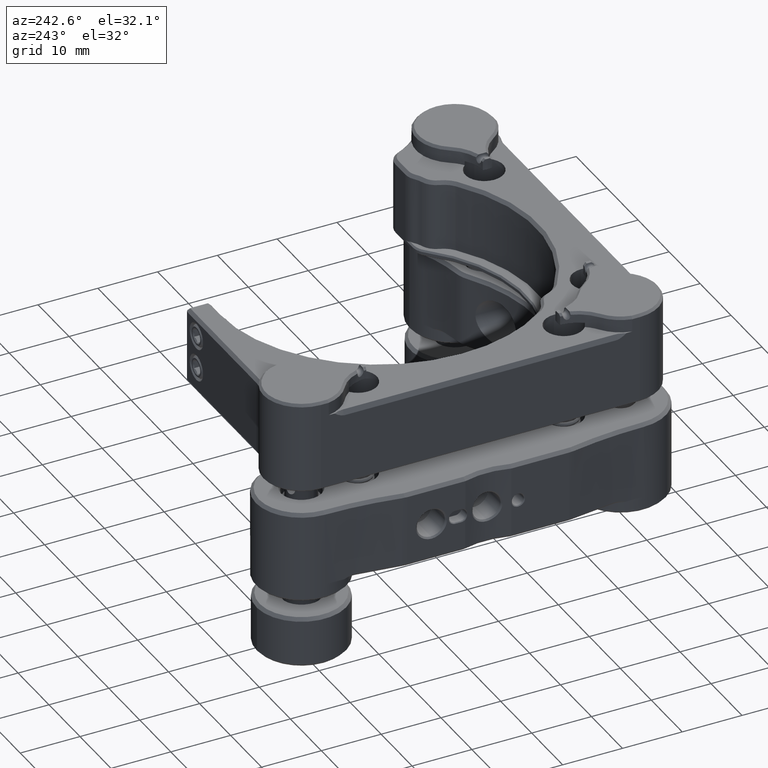
[diagram: clean part render]
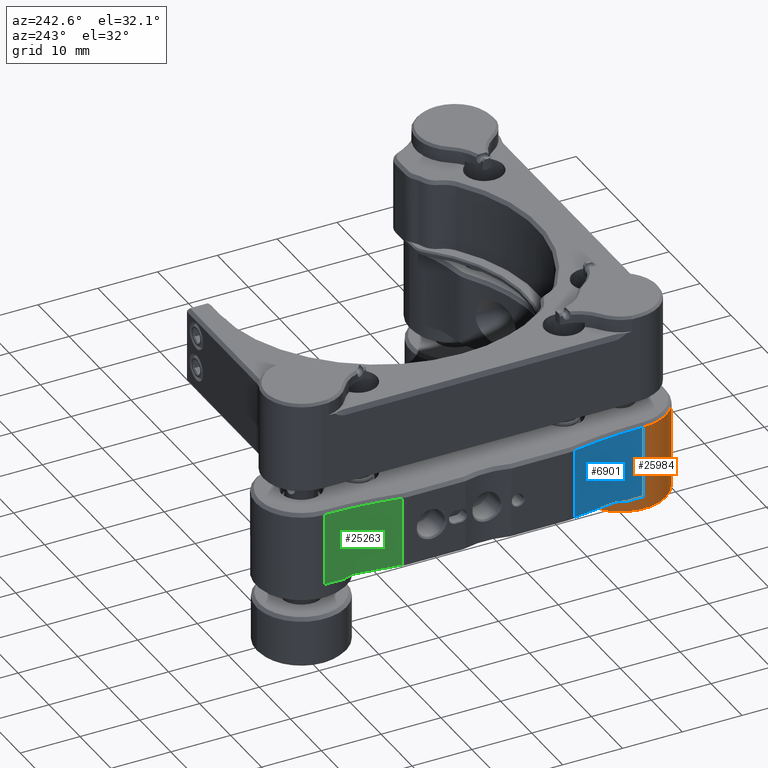
[diagram: same view with three faces highlighted in distinct colors, each labeled with its STEP entity id]
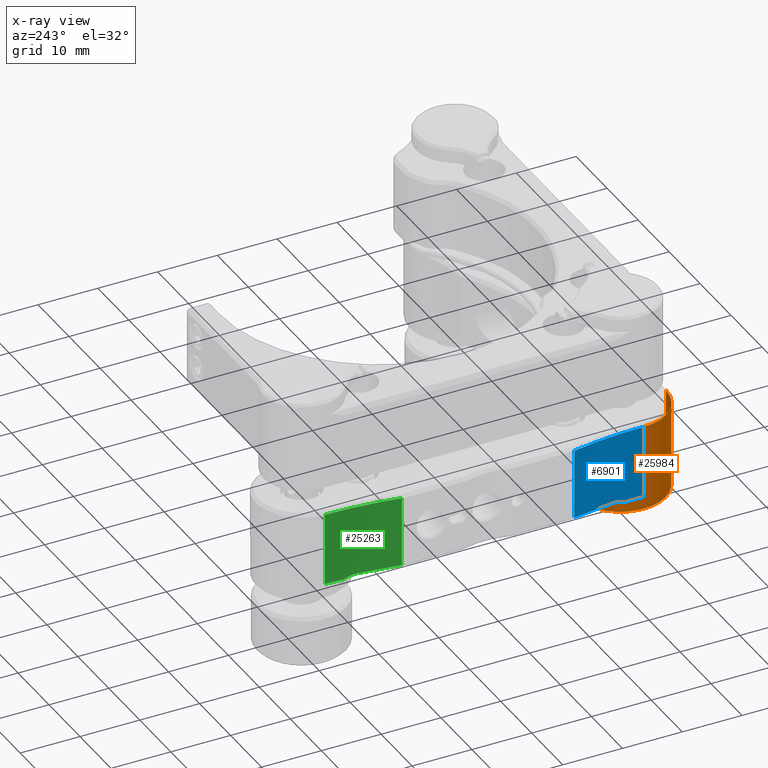
[diagram: x-ray of the same camera — body ghosted, the three highlighted faces saturated]
A machine part, auxiliary view with three faces highlighted in distinct colors.
The next image is the same camera in x-ray (body ghosted, the three faces saturated) — at least one of them is partly hidden behind the body in this view.
Their STEP definitions:

[orange] entity #25984 — the highlighted cylindrical surface (partial cylindrical patch) has radius 7.62 mm, axis along (0, -0, 1).
#107 = CARTESIAN_POINT ( 'NONE',  ( 5.320739594792300409, 10.17544614976528194, 57.64502420018478546 ) ) ;
#872 = VERTEX_POINT ( 'NONE', #23677 ) ;
#1443 = ORIENTED_EDGE ( 'NONE', *, *, #28863, .T. ) ;
#1447 = ORIENTED_EDGE ( 'NONE', *, *, #7092, .T. ) ;
#1551 = DIRECTION ( 'NONE',  ( -0.000000000000000000, -0.000000000000000000, -1.000000000000000000 ) ) ;
#1716 = VERTEX_POINT ( 'NONE', #16530 ) ;
#2501 = EDGE_CURVE ( 'NONE', #15963, #12929, #22671, .T. ) ;
#3138 = DIRECTION ( 'NONE',  ( 0.000000000000000000, 0.000000000000000000, -1.000000000000000000 ) ) ;
#3164 = EDGE_LOOP ( 'NONE', ( #8295, #1443, #26930, #1447, #25836, #26945, #23567 ) ) ;
#4037 = DIRECTION ( 'NONE',  ( 0.000000000000000000, 0.000000000000000000, 1.000000000000000000 ) ) ;
#4592 = AXIS2_PLACEMENT_3D ( 'NONE', #17470, #4037, #28726 ) ;
#4668 = DIRECTION ( 'NONE',  ( -0.000000000000000000, -0.000000000000000000, 1.000000000000000000 ) ) ;
#5191 = CARTESIAN_POINT ( 'NONE',  ( -1.293431173105919596, 13.95924649506378401, 45.45302420018479950 ) ) ;
#5305 = VERTEX_POINT ( 'NONE', #24842 ) ;
#5335 = DIRECTION ( 'NONE',  ( 1.000000000000000000, 0.000000000000000000, 0.000000000000000000 ) ) ;
#6034 = CARTESIAN_POINT ( 'NONE',  ( -8.913431173105921701, 13.95924649506377335, 45.45302420018480660 ) ) ;
#6427 = FACE_OUTER_BOUND ( 'NONE', #3164, .T. ) ;
#6592 = VECTOR ( 'NONE', #4668, 1000.000000000000000 ) ;
#7092 = EDGE_CURVE ( 'NONE', #25262, #13861, #10900, .T. ) ;
#8076 = EDGE_CURVE ( 'NONE', #872, #13861, #28287, .T. ) ;
#8295 = ORIENTED_EDGE ( 'NONE', *, *, #2501, .T. ) ;
#9123 = DIRECTION ( 'NONE',  ( -0.000000000000000000, -0.000000000000000000, -1.000000000000000000 ) ) ;
#9488 = CARTESIAN_POINT ( 'NONE',  ( -1.293431173105933585, 6.339246495063788345, 45.45302420018480660 ) ) ;
#10446 = VECTOR ( 'NONE', #9123, 1000.000000000000000 ) ;
#10900 = CIRCLE ( 'NONE', #17456, 7.619999999999998330 ) ;
#12050 = DIRECTION ( 'NONE',  ( 1.000000000000000000, 0.000000000000000000, 0.000000000000000000 ) ) ;
#12929 = VERTEX_POINT ( 'NONE', #24402 ) ;
#13823 = AXIS2_PLACEMENT_3D ( 'NONE', #14703, #3138, #12050 ) ;
#13861 = VERTEX_POINT ( 'NONE', #9488 ) ;
#14703 = CARTESIAN_POINT ( 'NONE',  ( -1.293431173105919596, 13.95924649506378401, 59.80402420018485543 ) ) ;
#14847 = EDGE_CURVE ( 'NONE', #872, #5305, #26480, .T. ) ;
#15088 = EDGE_CURVE ( 'NONE', #1716, #25262, #15985, .T. ) ;
#15963 = VERTEX_POINT ( 'NONE', #22884 ) ;
#15985 = LINE ( 'NONE', #20376, #18122 ) ;
#16530 = CARTESIAN_POINT ( 'NONE',  ( -8.913431173105948346, 13.95924649506377335, 57.64502420018478546 ) ) ;
#17456 = AXIS2_PLACEMENT_3D ( 'NONE', #5191, #20656, #5335 ) ;
#17470 = CARTESIAN_POINT ( 'NONE',  ( -1.293431173105919596, 13.95924649506378401, 57.64502420018478546 ) ) ;
#17967 = CYLINDRICAL_SURFACE ( 'NONE', #19963, 7.619999999999998330 ) ;
#18122 = VECTOR ( 'NONE', #27241, 1000.000000000000000 ) ;
#19963 = AXIS2_PLACEMENT_3D ( 'NONE', #21889, #24216, #26851 ) ;
#20376 = CARTESIAN_POINT ( 'NONE',  ( -8.913431173105921701, 13.95924649506377335, 60.18502420018479171 ) ) ;
#20656 = DIRECTION ( 'NONE',  ( -0.000000000000000000, -0.000000000000000000, 1.000000000000000000 ) ) ;
#20814 = VECTOR ( 'NONE', #1551, 1000.000000000000000 ) ;
#21556 = CARTESIAN_POINT ( 'NONE',  ( -1.293431173105933585, 6.339246495063788345, 60.18502420018479171 ) ) ;
#21889 = CARTESIAN_POINT ( 'NONE',  ( -1.293431173105919596, 13.95924649506378401, 60.18502420018479171 ) ) ;
#22410 = EDGE_CURVE ( 'NONE', #5305, #15963, #26280, .T. ) ;
#22671 = CIRCLE ( 'NONE', #13823, 7.619999999999998330 ) ;
#22884 = CARTESIAN_POINT ( 'NONE',  ( 5.320739594792300409, 10.17544614976528194, 59.80402420018485543 ) ) ;
#23567 = ORIENTED_EDGE ( 'NONE', *, *, #22410, .T. ) ;
#23677 = CARTESIAN_POINT ( 'NONE',  ( -1.293431173105919596, 6.339246495063753706, 57.64502420018478546 ) ) ;
#24008 = CARTESIAN_POINT ( 'NONE',  ( -8.913431173105918148, 13.95924649506378401, 60.18502420018479171 ) ) ;
#24216 = DIRECTION ( 'NONE',  ( -0.000000000000000000, -0.000000000000000000, -1.000000000000000000 ) ) ;
#24402 = CARTESIAN_POINT ( 'NONE',  ( -8.913431173105918148, 13.95924649506378401, 59.80402420018485543 ) ) ;
#24842 = CARTESIAN_POINT ( 'NONE',  ( 5.320739594792300409, 10.17544614976528194, 57.64502420018478546 ) ) ;
#25262 = VERTEX_POINT ( 'NONE', #6034 ) ;
#25836 = ORIENTED_EDGE ( 'NONE', *, *, #8076, .F. ) ;
#25984 = ADVANCED_FACE ( 'NONE', ( #6427 ), #17967, .T. ) ;
#26280 = LINE ( 'NONE', #107, #6592 ) ;
#26480 = CIRCLE ( 'NONE', #4592, 7.620000000000027640 ) ;
#26851 = DIRECTION ( 'NONE',  ( -1.000000000000000000, 0.000000000000000000, 0.000000000000000000 ) ) ;
#26930 = ORIENTED_EDGE ( 'NONE', *, *, #15088, .T. ) ;
#26945 = ORIENTED_EDGE ( 'NONE', *, *, #14847, .T. ) ;
#27241 = DIRECTION ( 'NONE',  ( -0.000000000000000000, -0.000000000000000000, -1.000000000000000000 ) ) ;
#28287 = LINE ( 'NONE', #21556, #20814 ) ;
#28712 = LINE ( 'NONE', #24008, #10446 ) ;
#28726 = DIRECTION ( 'NONE',  ( 1.000000000000000000, 0.000000000000000000, 0.000000000000000000 ) ) ;
#28863 = EDGE_CURVE ( 'NONE', #12929, #1716, #28712, .T. ) ;

[blue] entity #6901 — the highlighted cylindrical surface (partial cylindrical patch) has radius 64.135 mm, axis along (0, -0, 1).
#872 = VERTEX_POINT ( 'NONE', #23677 ) ;
#1079 = ORIENTED_EDGE ( 'NONE', *, *, #28790, .F. ) ;
#1107 = CIRCLE ( 'NONE', #17453, 64.13500000000001933 ) ;
#1457 = B_SPLINE_CURVE_WITH_KNOTS ( 'NONE', 3,
 ( #15470, #17377, #6424, #17813, #1888, #15324 ),
 .UNSPECIFIED., .F., .F.,
 ( 4, 2, 4 ),
 ( 4.055532391587150873E-05, 0.001053750496947555588, 0.002066945669979239775 ),
 .UNSPECIFIED. ) ;
#1551 = DIRECTION ( 'NONE',  ( -0.000000000000000000, -0.000000000000000000, -1.000000000000000000 ) ) ;
#1721 = CARTESIAN_POINT ( 'NONE',  ( 10.96400353837503872, 5.157034513496943973, 45.45302420018479950 ) ) ;
#1888 = CARTESIAN_POINT ( 'NONE',  ( 2.187685799726896363, 6.245438827657129544, 57.49551472478759706 ) ) ;
#2753 = EDGE_CURVE ( 'NONE', #25237, #7052, #8938, .T. ) ;
#5630 = ORIENTED_EDGE ( 'NONE', *, *, #15655, .T. ) ;
#6134 = LINE ( 'NONE', #15037, #21431 ) ;
#6224 = CARTESIAN_POINT ( 'NONE',  ( 8.006771059037232519, 5.664191285548120902, 57.13485118723092882 ) ) ;
#6424 = CARTESIAN_POINT ( 'NONE',  ( 3.158962145414044631, 6.185350705600357379, 57.18560838483541175 ) ) ;
#6491 = CARTESIAN_POINT ( 'NONE',  ( 4.431179657711202147, 6.086069363838147339, 57.13877926146273012 ) ) ;
#6503 = CARTESIAN_POINT ( 'NONE',  ( -1.293431173105933585, -57.79575350493623631, 60.18502420018479171 ) ) ;
#6638 = DIRECTION ( 'NONE',  ( 1.000000000000000000, -4.262764790113739972E-14, 0.000000000000000000 ) ) ;
#6901 = ADVANCED_FACE ( 'NONE', ( #13364 ), #17323, .F. ) ;
#7052 = VERTEX_POINT ( 'NONE', #20369 ) ;
#7790 = EDGE_LOOP ( 'NONE', ( #5630, #27622, #23951, #1079, #26134, #15608 ) ) ;
#8076 = EDGE_CURVE ( 'NONE', #872, #13861, #28287, .T. ) ;
#8938 = B_SPLINE_CURVE_WITH_KNOTS ( 'NONE', 3,
 ( #24289, #14840, #19661, #17594, #6224, #24006, #12917, #26481, #6491, #13063 ),
 .UNSPECIFIED., .F., .F.,
 ( 4, 2, 2, 2, 4 ),
 ( 1.734723475976807094E-18, 0.001800193156293176380, 0.003600386312586351025, 0.005400579468879521117, 0.007200772625172690775 ),
 .UNSPECIFIED. ) ;
#9488 = CARTESIAN_POINT ( 'NONE',  ( -1.293431173105933585, 6.339246495063788345, 45.45302420018480660 ) ) ;
#9700 = DIRECTION ( 'NONE',  ( 1.000000000000000000, -1.071100797515888926E-14, 0.000000000000000000 ) ) ;
#9894 = VERTEX_POINT ( 'NONE', #19649 ) ;
#11576 = EDGE_CURVE ( 'NONE', #13861, #26555, #26994, .T. ) ;
#12917 = CARTESIAN_POINT ( 'NONE',  ( 6.221903654392023419, 5.900228564337316683, 57.13354005002906888 ) ) ;
#13063 = CARTESIAN_POINT ( 'NONE',  ( 3.832902384274770924, 6.134043376161982586, 57.13447695245469760 ) ) ;
#13079 = DIRECTION ( 'NONE',  ( -0.000000000000000000, -0.000000000000000000, -1.000000000000000000 ) ) ;
#13354 = DIRECTION ( 'NONE',  ( -0.000000000000000000, -0.000000000000000000, -1.000000000000000000 ) ) ;
#13364 = FACE_OUTER_BOUND ( 'NONE', #7790, .T. ) ;
#13861 = VERTEX_POINT ( 'NONE', #9488 ) ;
#14248 = CARTESIAN_POINT ( 'NONE',  ( -1.293431173105933585, -57.79575350493623631, 45.45302420018479950 ) ) ;
#14840 = CARTESIAN_POINT ( 'NONE',  ( 10.37487028153451440, 5.271743689363317387, 57.13812038613090749 ) ) ;
#14878 = AXIS2_PLACEMENT_3D ( 'NONE', #14248, #16855, #9700 ) ;
#15037 = CARTESIAN_POINT ( 'NONE',  ( 10.96400353837503872, 5.157034513496943973, 60.18502420018479171 ) ) ;
#15324 = CARTESIAN_POINT ( 'NONE',  ( 1.881034832691783842, 6.260635642267621925, 57.64502420018477835 ) ) ;
#15470 = CARTESIAN_POINT ( 'NONE',  ( 3.832902384274770924, 6.134043376161982586, 57.13447695245469760 ) ) ;
#15608 = ORIENTED_EDGE ( 'NONE', *, *, #11576, .T. ) ;
#15655 = EDGE_CURVE ( 'NONE', #26555, #25237, #6134, .T. ) ;
#16855 = DIRECTION ( 'NONE',  ( 0.000000000000000000, 0.000000000000000000, -1.000000000000000000 ) ) ;
#17323 = CYLINDRICAL_SURFACE ( 'NONE', #28646, 64.13500000000001933 ) ;
#17377 = CARTESIAN_POINT ( 'NONE',  ( 3.491950554828951780, 6.161383253496325985, 57.13449602354798174 ) ) ;
#17453 = AXIS2_PLACEMENT_3D ( 'NONE', #26782, #13354, #6638 ) ;
#17594 = CARTESIAN_POINT ( 'NONE',  ( 8.600291101824099727, 5.574370210896206324, 57.13405470140205011 ) ) ;
#17813 = CARTESIAN_POINT ( 'NONE',  ( 2.505254661522253290, 6.227488276405480860, 57.36681980303684014 ) ) ;
#19649 = CARTESIAN_POINT ( 'NONE',  ( 1.881034832691783842, 6.260635642267621925, 57.64502420018477835 ) ) ;
#19661 = CARTESIAN_POINT ( 'NONE',  ( 9.784300717084400745, 5.378150730771848131, 57.13420896518611158 ) ) ;
#20369 = CARTESIAN_POINT ( 'NONE',  ( 3.832902384274770924, 6.134043376161982586, 57.13447695245469760 ) ) ;
#20814 = VECTOR ( 'NONE', #1551, 1000.000000000000000 ) ;
#21431 = VECTOR ( 'NONE', #23921, 1000.000000000000000 ) ;
#21556 = CARTESIAN_POINT ( 'NONE',  ( -1.293431173105933585, 6.339246495063788345, 60.18502420018479171 ) ) ;
#21977 = DIRECTION ( 'NONE',  ( -1.000000000000000000, 0.000000000000000000, 0.000000000000000000 ) ) ;
#22485 = EDGE_CURVE ( 'NONE', #7052, #9894, #1457, .T. ) ;
#23677 = CARTESIAN_POINT ( 'NONE',  ( -1.293431173105919596, 6.339246495063753706, 57.64502420018478546 ) ) ;
#23921 = DIRECTION ( 'NONE',  ( 0.000000000000000000, 0.000000000000000000, 1.000000000000000000 ) ) ;
#23951 = ORIENTED_EDGE ( 'NONE', *, *, #22485, .T. ) ;
#24006 = CARTESIAN_POINT ( 'NONE',  ( 6.817663971417903923, 5.827107873082321809, 57.13460632869670519 ) ) ;
#24289 = CARTESIAN_POINT ( 'NONE',  ( 10.96400353837504227, 5.157034513496958184, 57.13449862993233097 ) ) ;
#25237 = VERTEX_POINT ( 'NONE', #25879 ) ;
#25879 = CARTESIAN_POINT ( 'NONE',  ( 10.96400353837504227, 5.157034513496958184, 57.13449862993233097 ) ) ;
#26134 = ORIENTED_EDGE ( 'NONE', *, *, #8076, .T. ) ;
#26481 = CARTESIAN_POINT ( 'NONE',  ( 5.028634305822259343, 6.029710672136273431, 57.13484818126836728 ) ) ;
#26555 = VERTEX_POINT ( 'NONE', #1721 ) ;
#26782 = CARTESIAN_POINT ( 'NONE',  ( -1.293431173105933585, -57.79575350493623631, 57.64502420018478546 ) ) ;
#26994 = CIRCLE ( 'NONE', #14878, 64.13500000000001933 ) ;
#27622 = ORIENTED_EDGE ( 'NONE', *, *, #2753, .T. ) ;
#28287 = LINE ( 'NONE', #21556, #20814 ) ;
#28646 = AXIS2_PLACEMENT_3D ( 'NONE', #6503, #13079, #21977 ) ;
#28790 = EDGE_CURVE ( 'NONE', #872, #9894, #1107, .T. ) ;

[green] entity #25263 — the highlighted cylindrical surface (partial cylindrical patch) has radius 64.135 mm, axis along (0, -0, 1).
#97 = CARTESIAN_POINT ( 'NONE',  ( 42.75137853209032812, 5.664928412439801164, 57.13460754107808981 ) ) ;
#808 = CARTESIAN_POINT ( 'NONE',  ( 39.78913411541309131, 5.157034513496943973, 60.18502420018479171 ) ) ;
#1474 = CARTESIAN_POINT ( 'NONE',  ( 39.79264412349870383, 5.157717839887318689, 57.13447695245484681 ) ) ;
#1689 = EDGE_CURVE ( 'NONE', #19690, #16312, #19663, .T. ) ;
#1909 = EDGE_CURVE ( 'NONE', #11805, #19494, #24271, .T. ) ;
#2300 = CARTESIAN_POINT ( 'NONE',  ( 39.79147411410263402, 5.157490096972800586, 57.13446550809075575 ) ) ;
#2925 = CARTESIAN_POINT ( 'NONE',  ( 52.04656882689406672, -57.79575350493623631, 57.64502420018478546 ) ) ;
#3023 = CARTESIAN_POINT ( 'NONE',  ( 44.53715267731283234, 5.900929425211600687, 57.13405120422741845 ) ) ;
#3385 = DIRECTION ( 'NONE',  ( -0.000000000000000000, -0.000000000000000000, -1.000000000000000000 ) ) ;
#3697 = DIRECTION ( 'NONE',  ( -0.000000000000000000, -0.000000000000000000, -1.000000000000000000 ) ) ;
#3842 = VERTEX_POINT ( 'NONE', #24809 ) ;
#4536 = EDGE_CURVE ( 'NONE', #5320, #19690, #25212, .T. ) ;
#4715 = AXIS2_PLACEMENT_3D ( 'NONE', #25565, #3385, #7916 ) ;
#4930 = CARTESIAN_POINT ( 'NONE',  ( 46.32878498583547611, 6.086683576321733291, 57.13813393424977960 ) ) ;
#5320 = VERTEX_POINT ( 'NONE', #18593 ) ;
#7266 = CARTESIAN_POINT ( 'NONE',  ( 45.73102735173242905, 6.030359357174452484, 57.13421314600243051 ) ) ;
#7572 = CARTESIAN_POINT ( 'NONE',  ( 52.04656882689405251, 6.339246495063788345, 60.18502420018479171 ) ) ;
#7916 = DIRECTION ( 'NONE',  ( 1.000000000000000000, -1.601241596286379535E-14, 0.000000000000000000 ) ) ;
#8211 = CARTESIAN_POINT ( 'NONE',  ( 40.38207674387549417, 5.272451194435146427, 57.13878139487641050 ) ) ;
#8224 = FACE_OUTER_BOUND ( 'NONE', #22786, .T. ) ;
#8385 = CARTESIAN_POINT ( 'NONE',  ( 52.04656882689405251, 6.339246495063802556, 57.64502420018478546 ) ) ;
#8685 = CARTESIAN_POINT ( 'NONE',  ( 47.19090729381273519, 6.155171242686908961, 57.14449150601495120 ) ) ;
#9207 = VECTOR ( 'NONE', #16472, 1000.000000000000000 ) ;
#9457 = ORIENTED_EDGE ( 'NONE', *, *, #4536, .T. ) ;
#9669 = VERTEX_POINT ( 'NONE', #8385 ) ;
#10305 = VERTEX_POINT ( 'NONE', #8685 ) ;
#10611 = AXIS2_PLACEMENT_3D ( 'NONE', #21638, #3697, #28529 ) ;
#11329 = CARTESIAN_POINT ( 'NONE',  ( 52.04656882689405251, 6.339246495063788345, 45.45302420018476397 ) ) ;
#11362 = CARTESIAN_POINT ( 'NONE',  ( 39.78913411541309131, 5.157034513496951078, 57.13444250768154120 ) ) ;
#11450 = CARTESIAN_POINT ( 'NONE',  ( 46.92736422744821567, 6.134614625311673564, 57.13447695245486102 ) ) ;
#11581 = CIRCLE ( 'NONE', #26954, 64.13500000000001933 ) ;
#11805 = VERTEX_POINT ( 'NONE', #24682 ) ;
#11848 = DIRECTION ( 'NONE',  ( 0.000000000000000000, 0.000000000000000000, 1.000000000000000000 ) ) ;
#12098 = EDGE_CURVE ( 'NONE', #5320, #11805, #18540, .T. ) ;
#12162 = CARTESIAN_POINT ( 'NONE',  ( 47.77763766970855386, 6.199720467389606249, 57.18904073071775684 ) ) ;
#12347 = CARTESIAN_POINT ( 'NONE',  ( 47.10357223012640304, 6.148540071817917507, 57.13786033514607254 ) ) ;
#12733 = CARTESIAN_POINT ( 'NONE',  ( 43.94108958514464547, 5.827826387243366213, 57.13485066223463349 ) ) ;
#14286 = ORIENTED_EDGE ( 'NONE', *, *, #1909, .F. ) ;
#16312 = VERTEX_POINT ( 'NONE', #11329 ) ;
#16367 = DIRECTION ( 'NONE',  ( 1.000000000000000000, 0.000000000000000000, 0.000000000000000000 ) ) ;
#16472 = DIRECTION ( 'NONE',  ( -0.000000000000000000, -0.000000000000000000, -1.000000000000000000 ) ) ;
#16544 = CARTESIAN_POINT ( 'NONE',  ( 48.34568907423565776, 6.234610443244686273, 57.38469808329436006 ) ) ;
#16686 = CARTESIAN_POINT ( 'NONE',  ( 47.19090729381273519, 6.155171242686908961, 57.14449150601495120 ) ) ;
#16730 = CARTESIAN_POINT ( 'NONE',  ( 47.01573238619408812, 6.141690678491491973, 57.13447200963830852 ) ) ;
#17025 = CARTESIAN_POINT ( 'NONE',  ( 47.19090729381273519, 6.155171242686908961, 57.14449150601495120 ) ) ;
#18530 = CARTESIAN_POINT ( 'NONE',  ( 46.92736422744821567, 6.134614625311673564, 57.13447695245486102 ) ) ;
#18540 = B_SPLINE_CURVE_WITH_KNOTS ( 'NONE', 3,
 ( #11362, #28069, #2300, #1474 ),
 .UNSPECIFIED., .F., .F.,
 ( 4, 4 ),
 ( 1.398578778534940505E-17, 3.576070211748039774E-06 ),
 .UNSPECIFIED. ) ;
#18545 = LINE ( 'NONE', #7572, #9207 ) ;
#18593 = CARTESIAN_POINT ( 'NONE',  ( 39.78913411541309131, 5.157034513496951078, 57.13444250768154120 ) ) ;
#19228 = ORIENTED_EDGE ( 'NONE', *, *, #12098, .F. ) ;
#19494 = VERTEX_POINT ( 'NONE', #11450 ) ;
#19663 = CIRCLE ( 'NONE', #4715, 64.13500000000001933 ) ;
#19690 = VERTEX_POINT ( 'NONE', #21495 ) ;
#20135 = CARTESIAN_POINT ( 'NONE',  ( 42.15755678977573950, 5.575108243730125146, 57.13354057956721022 ) ) ;
#20497 = ORIENTED_EDGE ( 'NONE', *, *, #24218, .F. ) ;
#21342 = CYLINDRICAL_SURFACE ( 'NONE', #10611, 64.13500000000001933 ) ;
#21495 = CARTESIAN_POINT ( 'NONE',  ( 39.78913411541309131, 5.157034513496943973, 45.45302420018475686 ) ) ;
#21638 = CARTESIAN_POINT ( 'NONE',  ( 52.04656882689406672, -57.79575350493623631, 60.18502420018479171 ) ) ;
#22301 = CARTESIAN_POINT ( 'NONE',  ( 40.97294569728221347, 5.378873906882998490, 57.13484589411597625 ) ) ;
#22786 = EDGE_LOOP ( 'NONE', ( #19228, #9457, #27657, #20497, #27425, #27748, #28184, #14286 ) ) ;
#23282 = EDGE_CURVE ( 'NONE', #19494, #10305, #24047, .T. ) ;
#24047 = B_SPLINE_CURVE_WITH_KNOTS ( 'NONE', 3,
 ( #27831, #16730, #12347, #17025 ),
 .UNSPECIFIED., .F., .F.,
 ( 4, 4 ),
 ( 4.055499118967743216E-05, 0.0003031533777703361338 ),
 .UNSPECIFIED. ) ;
#24171 = B_SPLINE_CURVE_WITH_KNOTS ( 'NONE', 3,
 ( #16686, #12162, #16544, #25440 ),
 .UNSPECIFIED., .F., .F.,
 ( 4, 4 ),
 ( 0.0003031533777703361338, 0.002067329684110364406 ),
 .UNSPECIFIED. ) ;
#24218 = EDGE_CURVE ( 'NONE', #9669, #16312, #18545, .T. ) ;
#24271 = B_SPLINE_CURVE_WITH_KNOTS ( 'NONE', 3,
 ( #28222, #8211, #22301, #20135, #97, #12733, #3023, #7266, #4930, #18530 ),
 .UNSPECIFIED., .F., .F.,
 ( 4, 2, 2, 2, 4 ),
 ( 0.000000000000000000, 0.001801086870067461791, 0.003602173740134923582, 0.005403260610202385156, 0.007204347480269847163 ),
 .UNSPECIFIED. ) ;
#24682 = CARTESIAN_POINT ( 'NONE',  ( 39.79264412349870383, 5.157717839887318689, 57.13447695245484681 ) ) ;
#24809 = CARTESIAN_POINT ( 'NONE',  ( 48.87963329286377956, 6.261008388897343124, 57.64502420018478546 ) ) ;
#25109 = EDGE_CURVE ( 'NONE', #10305, #3842, #24171, .T. ) ;
#25212 = LINE ( 'NONE', #808, #28403 ) ;
#25263 = ADVANCED_FACE ( 'NONE', ( #8224 ), #21342, .F. ) ;
#25440 = CARTESIAN_POINT ( 'NONE',  ( 48.87963329286377956, 6.261008388897343124, 57.64502420018478546 ) ) ;
#25565 = CARTESIAN_POINT ( 'NONE',  ( 52.04656882689406672, -57.79575350493623631, 45.45302420018475686 ) ) ;
#25583 = EDGE_CURVE ( 'NONE', #9669, #3842, #11581, .T. ) ;
#26954 = AXIS2_PLACEMENT_3D ( 'NONE', #2925, #11848, #16367 ) ;
#27425 = ORIENTED_EDGE ( 'NONE', *, *, #25583, .T. ) ;
#27555 = DIRECTION ( 'NONE',  ( -0.000000000000000000, -0.000000000000000000, -1.000000000000000000 ) ) ;
#27657 = ORIENTED_EDGE ( 'NONE', *, *, #1689, .T. ) ;
#27748 = ORIENTED_EDGE ( 'NONE', *, *, #25109, .F. ) ;
#27831 = CARTESIAN_POINT ( 'NONE',  ( 46.92736422744821567, 6.134614625311673564, 57.13447695245486102 ) ) ;
#28069 = CARTESIAN_POINT ( 'NONE',  ( 39.79030411136749024, 5.157262321501550950, 57.13445403049326643 ) ) ;
#28184 = ORIENTED_EDGE ( 'NONE', *, *, #23282, .F. ) ;
#28222 = CARTESIAN_POINT ( 'NONE',  ( 39.79264412349870383, 5.157717839887318689, 57.13447695245484681 ) ) ;
#28403 = VECTOR ( 'NONE', #27555, 1000.000000000000000 ) ;
#28529 = DIRECTION ( 'NONE',  ( -1.000000000000000000, 0.000000000000000000, 0.000000000000000000 ) ) ;